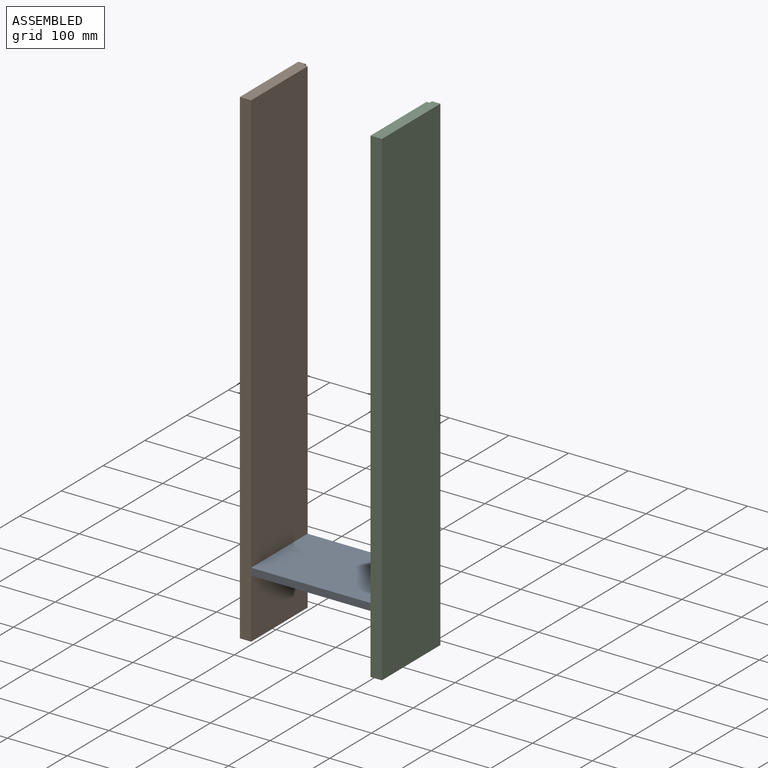
[diagram: assembled view]
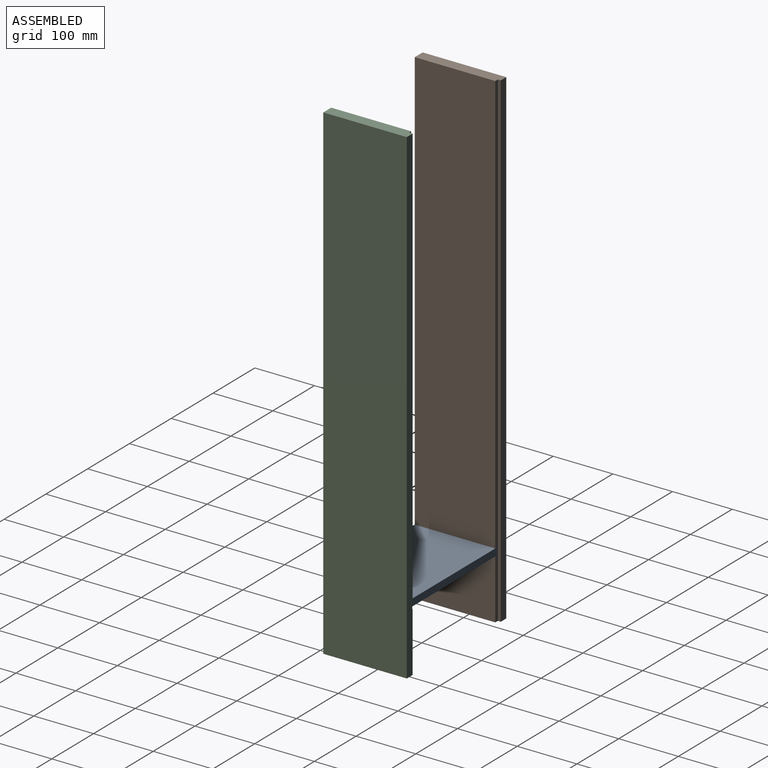
[diagram: assembled view, second angle]
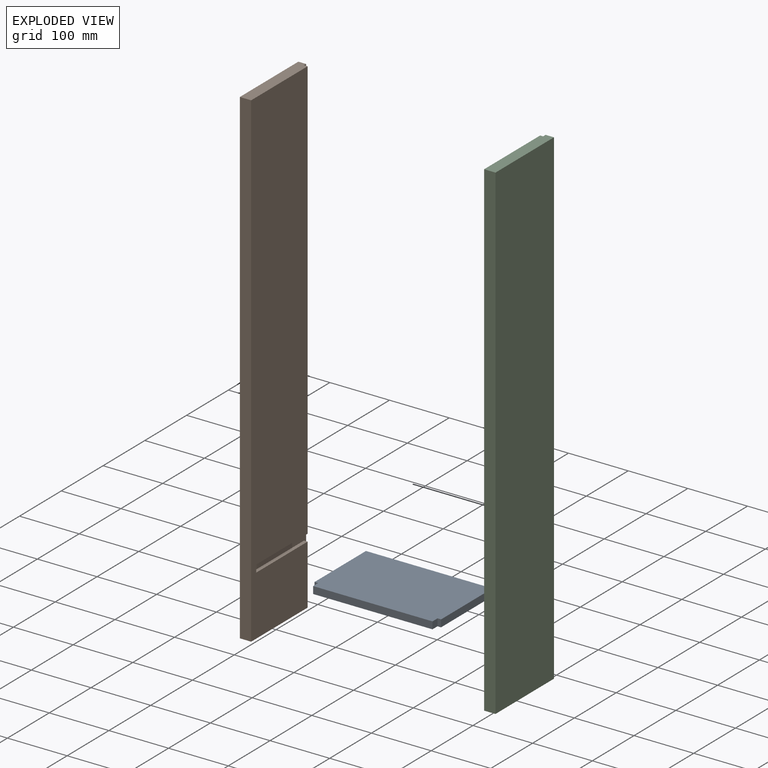
[diagram: exploded view]
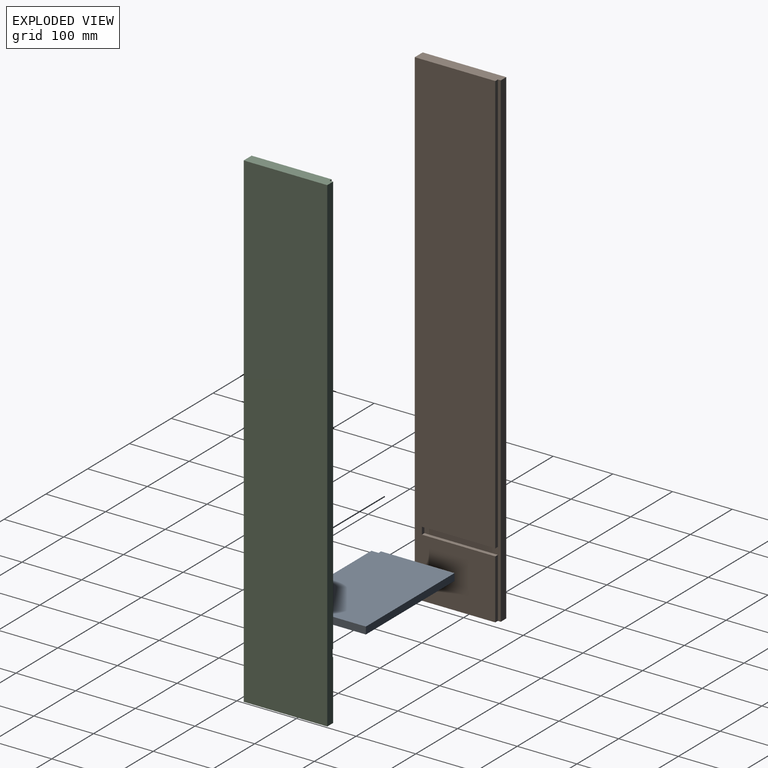
[diagram: exploded view, second angle]
ASSEMBLY  parts=3 mates=2
PART A: 10 faces, bbox 212x135x12 mm
  f0: plane 212x135mm, normal (0,0,1), area 28476mm2, adj f2,f3,f4,f5,f6,f7,f8,f9
  f1: plane 212x135mm, normal (0,0,-1), area 28476mm2, adj f2,f3,f4,f5,f6,f7,f8,f9
  f2: plane 123x12mm, normal (1,0,0), area 1476mm2, adj f0,f1,f5,f8
  f3: plane 123x12mm, normal (-1,0,0), area 1476mm2, adj f0,f1,f5,f6
  f4: plane 200x12mm, normal (0,-1,0), area 2400mm2, adj f0,f1,f7,f9
  f5: plane 212x12mm, normal (0,1,0), area 2544mm2, adj f0,f1,f2,f3
  f6: plane 12x6mm, normal (0,-1,0), area 72mm2, adj f0,f1,f3,f7
  f7: plane 12x12mm, normal (-1,0,0), area 144mm2, adj f0,f1,f4,f6
  f8: plane 12x6mm, normal (0,-1,0), area 72mm2, adj f0,f1,f2,f9
  f9: plane 12x12mm, normal (1,0,0), area 144mm2, adj f0,f1,f4,f8
PART B: 12 faces, bbox 19x140x820 mm
  f0: plane 140x19mm, normal (0,0,1), area 2630mm2, adj f1,f5,f6,f7,f9,f11
  f1: plane 820x135mm, normal (1,0,0), area 109224mm2, adj f0,f2,f3,f4,f6,f8,f10,f11
  f2: plane 140x19mm, normal (0,0,-1), area 2630mm2, adj f1,f5,f6,f7,f9,f10
  f3: plane 123x6mm, normal (0,0,-1), area 738mm2, adj f1,f8,f9,f11
  f4: plane 123x6mm, normal (0,0,1), area 738mm2, adj f1,f8,f9,f10
  f5: plane 820x13mm, normal (0,1,0), area 10660mm2, adj f0,f2,f7,f9
  f6: plane 820x19mm, normal (0,-1,0), area 15580mm2, adj f0,f1,f2,f7
  f7: plane 820x140mm, normal (-1,0,0), area 114800mm2, adj f0,f2,f5,f6
  f8: plane 12x6mm, normal (0,1,0), area 72mm2, adj f1,f3,f4,f9
  f9: plane 820x128mm, normal (1,0,0), area 5576mm2, adj f0,f2,f3,f4,f5,f8,f10,f11
  f10: plane 100x6mm, normal (0,1,0), area 600mm2, adj f1,f2,f4,f9
  f11: plane 708x6mm, normal (0,1,0), area 4248mm2, adj f0,f1,f3,f9
PART C: 14 faces, bbox 19x140x820 mm
  f0: plane 820x134mm, normal (1,0,0), area 108416mm2, adj f1,f3,f4,f6,f7,f8,f11,f12
  f1: plane 140x19mm, normal (0,0,1), area 2630mm2, adj f0,f2,f4,f5,f12,f13
  f2: plane 820x14mm, normal (0,-1,0), area 11468mm2, adj f1,f3,f5,f6,f7,f9,f10,f13
  f3: plane 140x19mm, normal (0,0,-1), area 2630mm2, adj f0,f2,f4,f5,f10,f11
  f4: plane 820x19mm, normal (0,1,0), area 15580mm2, adj f0,f1,f3,f5
  f5: plane 820x140mm, normal (-1,0,0), area 114800mm2, adj f1,f2,f3,f4
  f6: plane 128x6mm, normal (0,0,-1), area 738mm2, adj f0,f2,f8,f9,f12,f13
  f7: plane 128x6mm, normal (0,0,1), area 738mm2, adj f0,f2,f8,f9,f10,f11
  f8: plane 12x6mm, normal (0,-1,0), area 72mm2, adj f0,f6,f7,f9
  f9: plane 128x12mm, normal (1,0,0), area 1536mm2, adj f2,f6,f7,f8
  f10: plane 100x6mm, normal (1,0,0), area 600mm2, adj f2,f3,f7,f11
  f11: plane 100x5mm, normal (0,-1,0), area 500mm2, adj f0,f3,f7,f10
  f12: plane 708x5mm, normal (0,-1,0), area 3540mm2, adj f0,f1,f6,f13
  f13: plane 708x6mm, normal (1,0,0), area 4248mm2, adj f1,f2,f6,f12
PLACE A t=(-120.77,-39.41,-276.87)mm
PLACE B t=(-208.51,-98.3,-223.8)mm
PLACE C rot(axis=(0,0,1),180deg) t=(29.49,-104.61,-244.13)mm
MATE fastened A.f3 <-> B.f9  axis (-1,0,0) through (-195.51,-162.41,-288.26)mm
MATE fastened C.f9 <-> A.f2  axis (-1,0,0) through (16.49,-162.41,-288.26)mm
